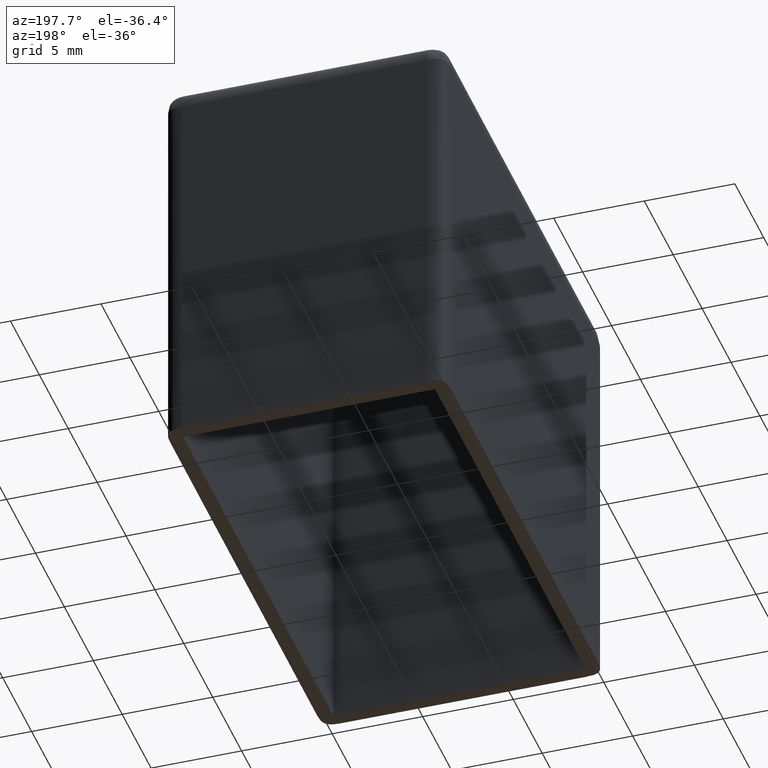
[diagram: clean part render]
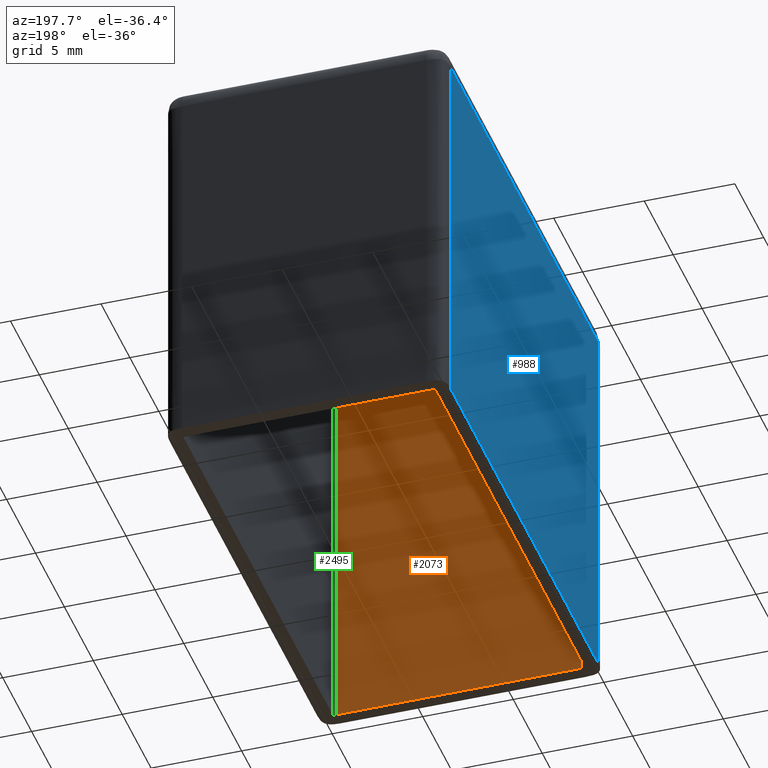
[diagram: same view with three faces highlighted in distinct colors, each labeled with its STEP entity id]
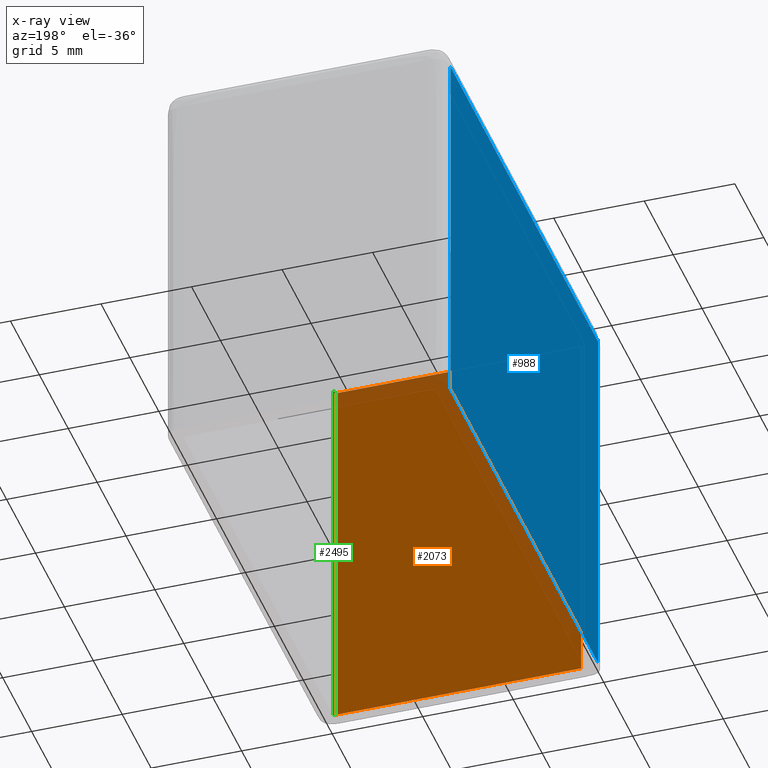
[diagram: x-ray of the same camera — body ghosted, the three highlighted faces saturated]
A machine part, auxiliary view with three faces highlighted in distinct colors.
The next image is the same camera in x-ray (body ghosted, the three faces saturated) — at least one of them is partly hidden behind the body in this view.
Their STEP definitions:

[orange] entity #2073 — the highlighted planar face has unit normal (-0, 1, 0).
#53 = EDGE_CURVE ( 'NONE', #734, #641, #395, .T. ) ;
#64 = CARTESIAN_POINT ( 'NONE',  ( 1.000000000000000900, 0.8000000000000000400, -1.000000000000014200 ) ) ;
#281 = EDGE_LOOP ( 'NONE', ( #1262, #414, #2556, #407 ) ) ;
#395 = LINE ( 'NONE', #1924, #754 ) ;
#407 = ORIENTED_EDGE ( 'NONE', *, *, #2258, .F. ) ;
#411 = DIRECTION ( 'NONE',  ( -1.000000000000000000, -0.0000000000000000000, 0.0000000000000000000 ) ) ;
#414 = ORIENTED_EDGE ( 'NONE', *, *, #917, .F. ) ;
#438 = VERTEX_POINT ( 'NONE', #2091 ) ;
#641 = VERTEX_POINT ( 'NONE', #1772 ) ;
#714 = CARTESIAN_POINT ( 'NONE',  ( 14.50000000000000000, 0.8000000000000000400, -22.00000000000000000 ) ) ;
#734 = VERTEX_POINT ( 'NONE', #714 ) ;
#739 = CARTESIAN_POINT ( 'NONE',  ( 15.50000000000000000, 0.8000000000000000400, 0.0000000000000000000 ) ) ;
#754 = VECTOR ( 'NONE', #411, 1000.000000000000000 ) ;
#767 = CARTESIAN_POINT ( 'NONE',  ( 9.999999999999998200, 0.7999999999999999300, -0.9999999999999997800 ) ) ;
#819 = B_SPLINE_CURVE_WITH_KNOTS ( 'NONE', 3,
 ( #64, #2335, #1848, #834 ),
 .UNSPECIFIED., .F., .F.,
 ( 4, 4 ),
 ( 0.0000000000000000000, 1.000000000000000000 ),
 .UNSPECIFIED. ) ;
#834 = CARTESIAN_POINT ( 'NONE',  ( 1.000000000000000900, 0.8000000000000000400, -22.00000000000000000 ) ) ;
#917 = EDGE_CURVE ( 'NONE', #734, #1101, #1794, .T. ) ;
#1101 = VERTEX_POINT ( 'NONE', #1245 ) ;
#1218 = CARTESIAN_POINT ( 'NONE',  ( 14.49999999999999800, 0.8000000000000000400, -15.00000000000000200 ) ) ;
#1232 = DIRECTION ( 'NONE',  ( 0.0000000000000000000, -0.0000000000000000000, 1.000000000000000000 ) ) ;
#1238 = CARTESIAN_POINT ( 'NONE',  ( 5.500000000000006200, 0.7999999999999999300, -1.000000000000000000 ) ) ;
#1245 = CARTESIAN_POINT ( 'NONE',  ( 14.50000000000000900, 0.8000000000000000400, -1.000000000000000000 ) ) ;
#1262 = ORIENTED_EDGE ( 'NONE', *, *, #1628, .F. ) ;
#1449 = AXIS2_PLACEMENT_3D ( 'NONE', #739, #2437, #1232 ) ;
#1628 = EDGE_CURVE ( 'NONE', #1101, #438, #1939, .T. ) ;
#1724 = CARTESIAN_POINT ( 'NONE',  ( 14.50000000000000900, 0.8000000000000000400, -1.000000000000000000 ) ) ;
#1753 = PLANE ( 'NONE',  #1449 ) ;
#1772 = CARTESIAN_POINT ( 'NONE',  ( 1.000000000000000900, 0.8000000000000000400, -22.00000000000000000 ) ) ;
#1794 = B_SPLINE_CURVE_WITH_KNOTS ( 'NONE', 3,
 ( #2717, #1218, #2977, #1724 ),
 .UNSPECIFIED., .F., .F.,
 ( 4, 4 ),
 ( 0.0000000000000000000, 1.000000000000000000 ),
 .UNSPECIFIED. ) ;
#1848 = CARTESIAN_POINT ( 'NONE',  ( 1.000000000000000900, 0.8000000000000000400, -15.00000000000002300 ) ) ;
#1924 = CARTESIAN_POINT ( 'NONE',  ( 15.50000000000000000, 0.8000000000000000400, -22.00000000000000000 ) ) ;
#1939 = B_SPLINE_CURVE_WITH_KNOTS ( 'NONE', 3,
 ( #1968, #767, #1238, #2756 ),
 .UNSPECIFIED., .F., .F.,
 ( 4, 4 ),
 ( 0.0000000000000000000, 1.000000000000000000 ),
 .UNSPECIFIED. ) ;
#1968 = CARTESIAN_POINT ( 'NONE',  ( 14.50000000000000900, 0.8000000000000000400, -1.000000000000000000 ) ) ;
#2044 = FACE_OUTER_BOUND ( 'NONE', #281, .T. ) ;
#2073 = ADVANCED_FACE ( 'NONE', ( #2044 ), #1753, .T. ) ;
#2091 = CARTESIAN_POINT ( 'NONE',  ( 1.000000000000000900, 0.8000000000000000400, -1.000000000000014200 ) ) ;
#2258 = EDGE_CURVE ( 'NONE', #438, #641, #819, .T. ) ;
#2335 = CARTESIAN_POINT ( 'NONE',  ( 1.000000000000001100, 0.7999999999999999300, -7.999999999999994700 ) ) ;
#2437 = DIRECTION ( 'NONE',  ( -0.0000000000000000000, 1.000000000000000000, 0.0000000000000000000 ) ) ;
#2556 = ORIENTED_EDGE ( 'NONE', *, *, #53, .T. ) ;
#2717 = CARTESIAN_POINT ( 'NONE',  ( 14.50000000000000000, 0.8000000000000000400, -22.00000000000000000 ) ) ;
#2756 = CARTESIAN_POINT ( 'NONE',  ( 1.000000000000000900, 0.8000000000000000400, -1.000000000000014200 ) ) ;
#2977 = CARTESIAN_POINT ( 'NONE',  ( 14.49999999999999800, 0.7999999999999999300, -8.000000000000001800 ) ) ;

[blue] entity #988 — the highlighted planar face has unit normal (-1, 0, 0).
#4 = CARTESIAN_POINT ( 'NONE',  ( 0.0000000000000000000, 1.000000000000000000, -22.00000000000000000 ) ) ;
#5 = CARTESIAN_POINT ( 'NONE',  ( 0.0000000000000000000, 0.0000000000000000000, -22.00000000000000000 ) ) ;
#152 = CARTESIAN_POINT ( 'NONE',  ( 0.0000000000000000000, 1.000000000000000000, -22.00000000000000000 ) ) ;
#173 = CARTESIAN_POINT ( 'NONE',  ( 0.0000000000000000000, 0.0000000000000000000, 0.0000000000000000000 ) ) ;
#200 = VERTEX_POINT ( 'NONE', #1629 ) ;
#270 = ORIENTED_EDGE ( 'NONE', *, *, #558, .T. ) ;
#343 = CARTESIAN_POINT ( 'NONE',  ( 0.0000000000000000000, 26.49999999999999600, -1.000000000000001300 ) ) ;
#558 = EDGE_CURVE ( 'NONE', #2729, #1021, #2152, .T. ) ;
#725 = B_SPLINE_CURVE_WITH_KNOTS ( 'NONE', 3,
 ( #4, #2763, #3040, #3050 ),
 .UNSPECIFIED., .F., .F.,
 ( 4, 4 ),
 ( 0.0000000000000000000, 1.000000000000000000 ),
 .UNSPECIFIED. ) ;
#749 = FACE_OUTER_BOUND ( 'NONE', #3213, .T. ) ;
#838 = CARTESIAN_POINT ( 'NONE',  ( 0.0000000000000000000, 26.49999999999999600, -1.000000000000001300 ) ) ;
#988 = ADVANCED_FACE ( 'NONE', ( #749 ), #1222, .T. ) ;
#1021 = VERTEX_POINT ( 'NONE', #2462 ) ;
#1094 = CARTESIAN_POINT ( 'NONE',  ( 0.0000000000000000000, 9.499999999999996400, -1.000000000000000000 ) ) ;
#1107 = CARTESIAN_POINT ( 'NONE',  ( 0.0000000000000000000, 18.00000000000000000, -1.000000000000000000 ) ) ;
#1222 = PLANE ( 'NONE',  #2852 ) ;
#1258 = EDGE_CURVE ( 'NONE', #2526, #1021, #1259, .T. ) ;
#1259 = LINE ( 'NONE', #5, #2544 ) ;
#1305 = B_SPLINE_CURVE_WITH_KNOTS ( 'NONE', 3,
 ( #1341, #1094, #1107, #838 ),
 .UNSPECIFIED., .F., .F.,
 ( 4, 4 ),
 ( 0.0000000000000000000, 1.000000000000000000 ),
 .UNSPECIFIED. ) ;
#1341 = CARTESIAN_POINT ( 'NONE',  ( 0.0000000000000000000, 0.9999999999999952300, -1.000000000000000000 ) ) ;
#1474 = CARTESIAN_POINT ( 'NONE',  ( 0.0000000000000000000, 26.49999999999999600, -1.000000000000001300 ) ) ;
#1511 = CARTESIAN_POINT ( 'NONE',  ( 0.0000000000000000000, 26.49999999999999600, -8.000000000000001800 ) ) ;
#1629 = CARTESIAN_POINT ( 'NONE',  ( 0.0000000000000000000, 0.9999999999999952300, -1.000000000000000000 ) ) ;
#1765 = DIRECTION ( 'NONE',  ( 0.0000000000000000000, 1.000000000000000000, 0.0000000000000000000 ) ) ;
#1787 = EDGE_CURVE ( 'NONE', #200, #2729, #1305, .T. ) ;
#2144 = ORIENTED_EDGE ( 'NONE', *, *, #1258, .F. ) ;
#2152 = B_SPLINE_CURVE_WITH_KNOTS ( 'NONE', 3,
 ( #343, #1511, #2500, #3231 ),
 .UNSPECIFIED., .F., .F.,
 ( 4, 4 ),
 ( 0.0000000000000000000, 1.000000000000000000 ),
 .UNSPECIFIED. ) ;
#2160 = EDGE_CURVE ( 'NONE', #2526, #200, #725, .T. ) ;
#2203 = ORIENTED_EDGE ( 'NONE', *, *, #1787, .T. ) ;
#2413 = ORIENTED_EDGE ( 'NONE', *, *, #2160, .T. ) ;
#2462 = CARTESIAN_POINT ( 'NONE',  ( 0.0000000000000000000, 26.49999999999999600, -22.00000000000000000 ) ) ;
#2500 = CARTESIAN_POINT ( 'NONE',  ( 0.0000000000000000000, 26.49999999999999600, -15.00000000000000400 ) ) ;
#2526 = VERTEX_POINT ( 'NONE', #152 ) ;
#2544 = VECTOR ( 'NONE', #1765, 1000.000000000000000 ) ;
#2694 = DIRECTION ( 'NONE',  ( -1.000000000000000000, 0.0000000000000000000, 0.0000000000000000000 ) ) ;
#2729 = VERTEX_POINT ( 'NONE', #1474 ) ;
#2763 = CARTESIAN_POINT ( 'NONE',  ( 0.0000000000000000000, 1.000000000000000000, -15.00000000000000500 ) ) ;
#2852 = AXIS2_PLACEMENT_3D ( 'NONE', #173, #2694, #2949 ) ;
#2949 = DIRECTION ( 'NONE',  ( 0.0000000000000000000, 0.0000000000000000000, 1.000000000000000000 ) ) ;
#3040 = CARTESIAN_POINT ( 'NONE',  ( 0.0000000000000000000, 1.000000000000000000, -8.000000000000008900 ) ) ;
#3050 = CARTESIAN_POINT ( 'NONE',  ( 0.0000000000000000000, 0.9999999999999952300, -1.000000000000000000 ) ) ;
#3213 = EDGE_LOOP ( 'NONE', ( #2144, #2413, #2203, #270 ) ) ;
#3231 = CARTESIAN_POINT ( 'NONE',  ( 0.0000000000000000000, 26.49999999999999600, -22.00000000000000000 ) ) ;

[green] entity #2495 — the highlighted face is a freeform B-spline surface patch.
#26 = CARTESIAN_POINT ( 'NONE',  ( 14.50266666772820500, 0.7999999999998378400, -0.9973333322718216400 ) ) ;
#34 = CARTESIAN_POINT ( 'NONE',  ( 14.68321624838080600, 0.8068364525453568500, -22.00000000000000400 ) ) ;
#61 = CARTESIAN_POINT ( 'NONE',  ( 14.51826384191940100, 0.8000476085432717300, -0.9817361580805815700 ) ) ;
#129 = CARTESIAN_POINT ( 'NONE',  ( 14.49999999999999800, 0.8000000000000000400, -0.6805157011581137700 ) ) ;
#142 = CARTESIAN_POINT ( 'NONE',  ( 14.64570777853248300, 0.8032597138085335600, -7.787010467438742400 ) ) ;
#162 = CARTESIAN_POINT ( 'NONE',  ( 14.64570777853247900, 0.8032597138085335600, -22.00000000000000400 ) ) ;
#263 = CARTESIAN_POINT ( 'NONE',  ( 14.51239878752990500, 0.8000243758871236100, -0.9876012124700566100 ) ) ;
#299 = CARTESIAN_POINT ( 'NONE',  ( 14.50533333655844700, 0.8000033329592659600, -0.9946666634416651000 ) ) ;
#422 = CARTESIAN_POINT ( 'NONE',  ( 14.69233031694019500, 0.8076696830624288100, -14.89350523371937200 ) ) ;
#513 = LINE ( 'NONE', #3003, #2747 ) ;
#527 = CARTESIAN_POINT ( 'NONE',  ( 14.50946626401672300, 0.8000138129204583700, -0.9905337359833443800 ) ) ;
#537 = CARTESIAN_POINT ( 'NONE',  ( 14.57691543994200100, 0.8008941582951419900, -0.9230845600579966600 ) ) ;
#556 = CARTESIAN_POINT ( 'NONE',  ( 14.52999381043847500, 0.8001457404320706500, -0.9700061895615704800 ) ) ;
#561 = VERTEX_POINT ( 'NONE', #2250 ) ;
#659 = CARTESIAN_POINT ( 'NONE',  ( 14.58309123693814000, 0.8000000000000000400, -7.787010467438740600 ) ) ;
#714 = CARTESIAN_POINT ( 'NONE',  ( 14.50000000000000000, 0.8000000000000000400, -22.00000000000000000 ) ) ;
#718 = ORIENTED_EDGE ( 'NONE', *, *, #917, .T. ) ;
#734 = VERTEX_POINT ( 'NONE', #714 ) ;
#740 = B_SPLINE_SURFACE_WITH_KNOTS ( 'NONE', 3, 3, ( 
 ( #1650, #1933, #422, #2903 ),
 ( #2157, #142, #1946, #162 ),
 ( #2670, #659, #3150, #1638 ),
 ( #129, #2400, #1902, #905 ) ),
 .UNSPECIFIED., .F., .F., .F.,
 ( 4, 4 ),
 ( 4, 4 ),
 ( 0.8898355429447438700, 1.000000000000002900 ),
 ( 0.0006805157011581144500, 0.02200000000000000600 ),
 .UNSPECIFIED. ) ;
#771 = CARTESIAN_POINT ( 'NONE',  ( 14.50000000000000900, 0.8000000000000000400, -1.000000000000000000 ) ) ;
#775 = CARTESIAN_POINT ( 'NONE',  ( 14.69067363173008400, 0.8075138148912469600, -21.99999999999999600 ) ) ;
#778 = CARTESIAN_POINT ( 'NONE',  ( 14.63104222954189900, 0.8029685426781276700, -0.8689577704580963000 ) ) ;
#810 = CARTESIAN_POINT ( 'NONE',  ( 14.50800000000003800, 0.8000100948803650100, -0.9920000000000447300 ) ) ;
#905 = CARTESIAN_POINT ( 'NONE',  ( 14.49999999999999800, 0.8000000000000000400, -22.00000000000000400 ) ) ;
#917 = EDGE_CURVE ( 'NONE', #734, #1101, #1794, .T. ) ;
#1013 = CARTESIAN_POINT ( 'NONE',  ( 14.54670370971553900, 0.8000000000000000400, -22.00000000000000000 ) ) ;
#1024 = VERTEX_POINT ( 'NONE', #2962 ) ;
#1026 = ORIENTED_EDGE ( 'NONE', *, *, #1102, .T. ) ;
#1068 = CARTESIAN_POINT ( 'NONE',  ( 14.55345456466514000, 0.8003779718381046600, -0.9465454353348835600 ) ) ;
#1101 = VERTEX_POINT ( 'NONE', #1245 ) ;
#1102 = EDGE_CURVE ( 'NONE', #1024, #561, #513, .T. ) ;
#1218 = CARTESIAN_POINT ( 'NONE',  ( 14.49999999999999800, 0.8000000000000000400, -15.00000000000000200 ) ) ;
#1245 = CARTESIAN_POINT ( 'NONE',  ( 14.50000000000000900, 0.8000000000000000400, -1.000000000000000000 ) ) ;
#1276 = CARTESIAN_POINT ( 'NONE',  ( 14.65335213209978000, 0.8044933777376698200, -22.00000000000000000 ) ) ;
#1465 = EDGE_CURVE ( 'NONE', #561, #734, #2751, .T. ) ;
#1507 = CARTESIAN_POINT ( 'NONE',  ( 14.68984517486579300, 0.8074371082567424200, -21.99999999999999600 ) ) ;
#1549 = CARTESIAN_POINT ( 'NONE',  ( 14.64006200776566900, 0.8037097831999530100, -22.00000000000000000 ) ) ;
#1590 = ORIENTED_EDGE ( 'NONE', *, *, #3082, .T. ) ;
#1620 = B_SPLINE_CURVE_WITH_KNOTS ( 'NONE', 3,
 ( #771, #26, #299, #810, #527, #3057, #263, #61, #2268, #556, #1068, #537, #2558, #778, #2049, #3036 ),
 .UNSPECIFIED., .F., .F.,
 ( 4, 3, 3, 3, 3, 4 ),
 ( -1.131371300266009500E-005, 0.0000000000000000000, 6.220841375091134500E-006, 3.110430783449605900E-005, 0.0001306468136533174600, 0.0002608842636611831800 ),
 .UNSPECIFIED. ) ;
#1638 = CARTESIAN_POINT ( 'NONE',  ( 14.58309123693814200, 0.8000000000000000400, -22.00000000000000400 ) ) ;
#1650 = CARTESIAN_POINT ( 'NONE',  ( 14.69233031694019700, 0.8076696830624288100, -0.6805157011581139900 ) ) ;
#1724 = CARTESIAN_POINT ( 'NONE',  ( 14.50000000000000900, 0.8000000000000000400, -1.000000000000000000 ) ) ;
#1794 = B_SPLINE_CURVE_WITH_KNOTS ( 'NONE', 3,
 ( #2717, #1218, #2977, #1724 ),
 .UNSPECIFIED., .F., .F.,
 ( 4, 4 ),
 ( 0.0000000000000000000, 1.000000000000000000 ),
 .UNSPECIFIED. ) ;
#1902 = CARTESIAN_POINT ( 'NONE',  ( 14.49999999999999800, 0.8000000000000000400, -14.89350523371937200 ) ) ;
#1933 = CARTESIAN_POINT ( 'NONE',  ( 14.69233031694019700, 0.8076696830624288100, -7.787010467438742400 ) ) ;
#1946 = CARTESIAN_POINT ( 'NONE',  ( 14.64570777853247900, 0.8032597138085335600, -14.89350523371937000 ) ) ;
#1969 = FACE_OUTER_BOUND ( 'NONE', #3078, .T. ) ;
#2028 = CARTESIAN_POINT ( 'NONE',  ( 14.69233031693694400, 0.8076696830621207200, -22.00000000000000000 ) ) ;
#2049 = CARTESIAN_POINT ( 'NONE',  ( 14.66171339123070000, 0.8047736652641918100, -0.8382866087692937300 ) ) ;
#2157 = CARTESIAN_POINT ( 'NONE',  ( 14.64570777853248300, 0.8032597138085335600, -0.6805157011581139900 ) ) ;
#2224 = DIRECTION ( 'NONE',  ( 0.0000000000000000000, 0.0000000000000000000, -1.000000000000000000 ) ) ;
#2246 = CARTESIAN_POINT ( 'NONE',  ( 14.67990016758179900, 0.8065547523396101600, -22.00000000000000400 ) ) ;
#2250 = CARTESIAN_POINT ( 'NONE',  ( 14.69233031693694400, 0.8076696830621207200, -22.00000000000000000 ) ) ;
#2268 = CARTESIAN_POINT ( 'NONE',  ( 14.52412887670831800, 0.8000876851030180900, -0.9758711232917326500 ) ) ;
#2278 = CARTESIAN_POINT ( 'NONE',  ( 14.68653132467973800, 0.8071302796142606500, -21.99999999999999600 ) ) ;
#2400 = CARTESIAN_POINT ( 'NONE',  ( 14.49999999999999800, 0.8000000000000000400, -7.787010467438740600 ) ) ;
#2495 = ADVANCED_FACE ( 'NONE', ( #1969 ), #740, .F. ) ;
#2498 = CARTESIAN_POINT ( 'NONE',  ( 14.69150201370507800, 0.8075913348659461400, -22.00000000000000700 ) ) ;
#2558 = CARTESIAN_POINT ( 'NONE',  ( 14.60036815877527900, 0.8017929729864606800, -0.8996318412247181800 ) ) ;
#2670 = CARTESIAN_POINT ( 'NONE',  ( 14.58309123693814000, 0.8000000000000000400, -0.6805157011581137700 ) ) ;
#2717 = CARTESIAN_POINT ( 'NONE',  ( 14.50000000000000000, 0.8000000000000000400, -22.00000000000000000 ) ) ;
#2747 = VECTOR ( 'NONE', #2224, 1000.000000000000000 ) ;
#2751 = B_SPLINE_CURVE_WITH_KNOTS ( 'NONE', 3,
 ( #2028, #2498, #775, #1507, #2278, #34, #2246, #3031, #1276, #1549, #2787, #1013, #2800 ),
 .UNSPECIFIED., .F., .F.,
 ( 4, 3, 3, 3, 4 ),
 ( 0.0000000000000000000, 2.496001232753127600E-006, 1.248007464209960000E-005, 5.242302430364454200E-005, 0.0001926087091526943700 ),
 .UNSPECIFIED. ) ;
#2787 = CARTESIAN_POINT ( 'NONE',  ( 14.59343926645284900, 0.8009608754766190900, -22.00000000000000000 ) ) ;
#2800 = CARTESIAN_POINT ( 'NONE',  ( 14.50000000000000000, 0.8000000000000000400, -22.00000000000000000 ) ) ;
#2903 = CARTESIAN_POINT ( 'NONE',  ( 14.69233031694019500, 0.8076696830624288100, -22.00000000000000400 ) ) ;
#2962 = CARTESIAN_POINT ( 'NONE',  ( 14.69233031693779700, 0.8076696830621991100, -0.8076696830622023300 ) ) ;
#2977 = CARTESIAN_POINT ( 'NONE',  ( 14.49999999999999800, 0.7999999999999999300, -8.000000000000001800 ) ) ;
#3003 = CARTESIAN_POINT ( 'NONE',  ( 14.69233031693779900, 0.8076696830622007700, -22.00000000000000400 ) ) ;
#3031 = CARTESIAN_POINT ( 'NONE',  ( 14.66663474131884300, 0.8054278578113731600, -22.00000000000000400 ) ) ;
#3036 = CARTESIAN_POINT ( 'NONE',  ( 14.69233031693779700, 0.8076696830621991100, -0.8076696830622023300 ) ) ;
#3038 = ORIENTED_EDGE ( 'NONE', *, *, #1465, .T. ) ;
#3057 = CARTESIAN_POINT ( 'NONE',  ( 14.51093252690803400, 0.8000185677348731200, -0.9890674730919223300 ) ) ;
#3078 = EDGE_LOOP ( 'NONE', ( #1026, #3038, #718, #1590 ) ) ;
#3082 = EDGE_CURVE ( 'NONE', #1101, #1024, #1620, .T. ) ;
#3150 = CARTESIAN_POINT ( 'NONE',  ( 14.58309123693814200, 0.8000000000000000400, -14.89350523371937200 ) ) ;